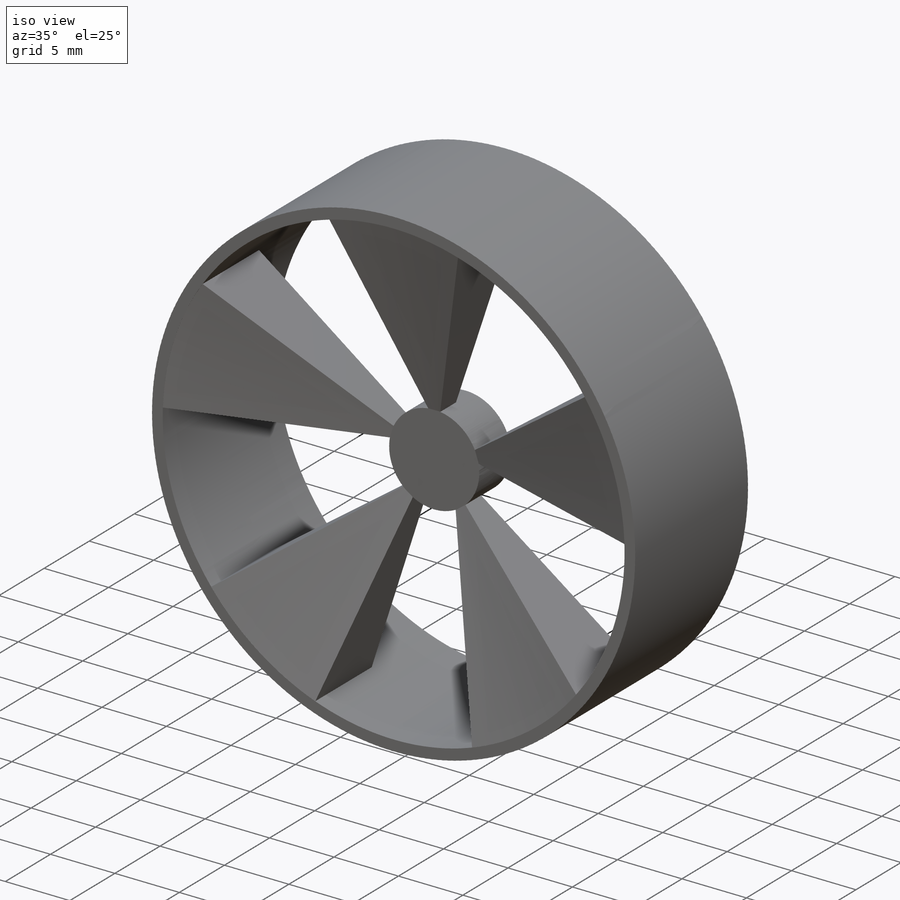
[diagram: iso view]
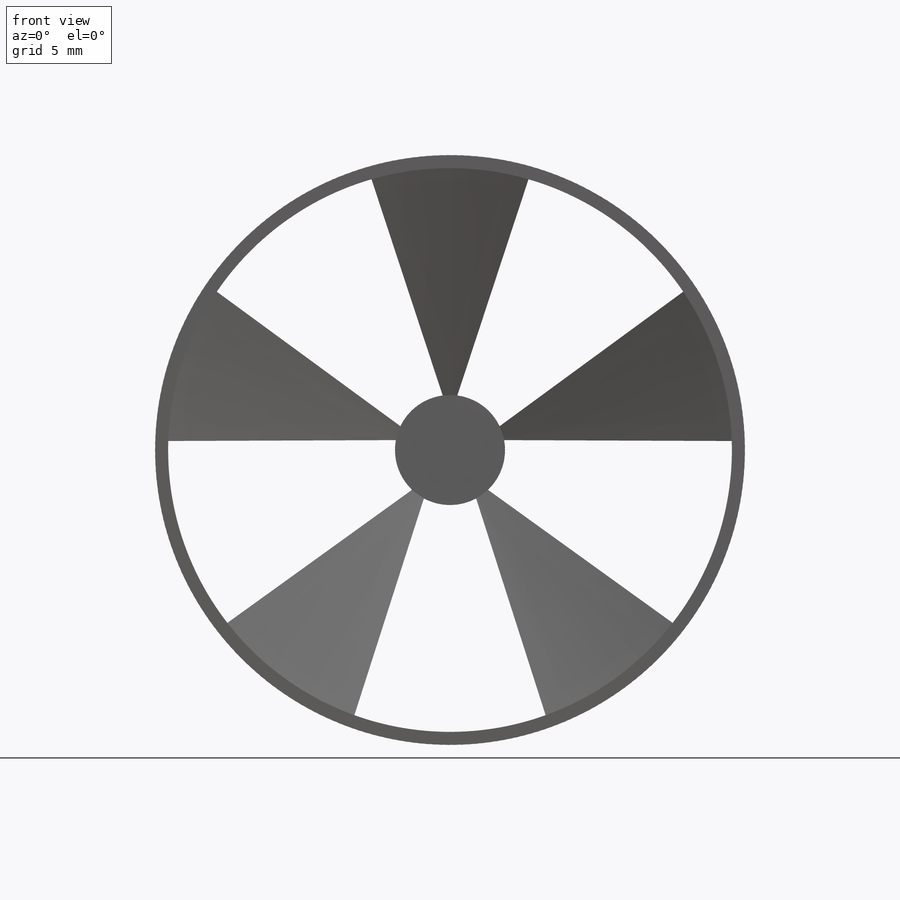
[diagram: front view]
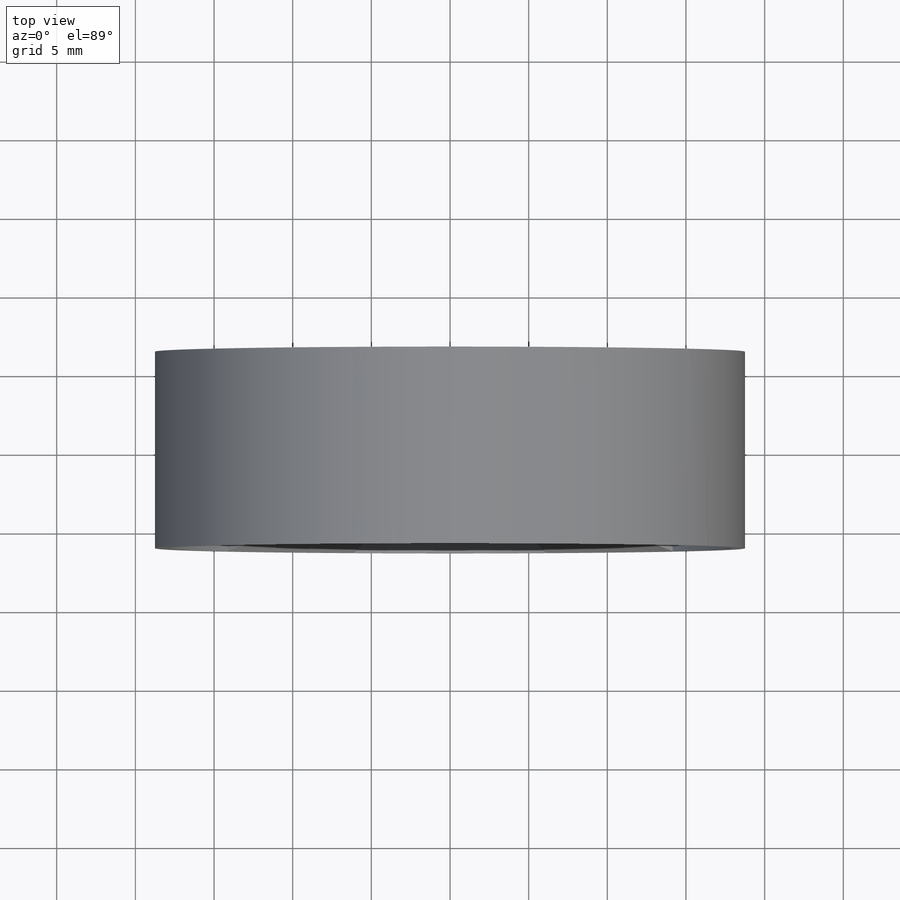
[diagram: top view]
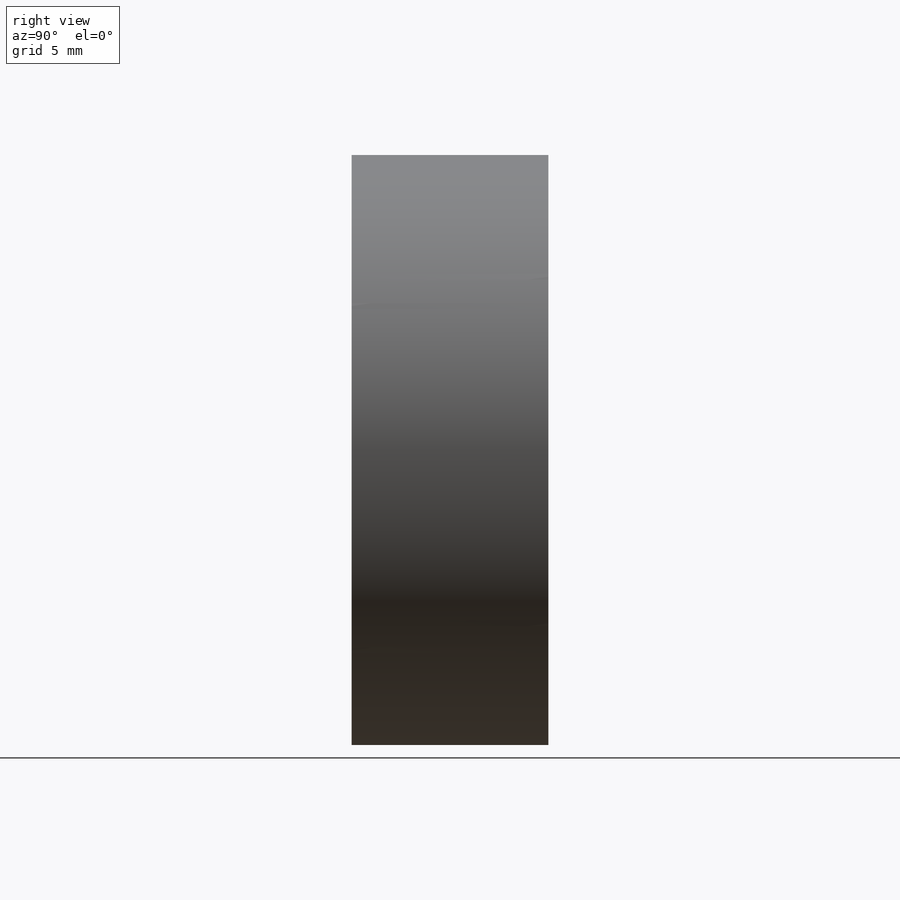
[diagram: right view]
SOLIDWORKS PART (.sldprt)
format: sldprt  version: not decoded by parser v0  size: 333,824 bytes
history: native  units: mm
features: sketch x8, revolve x2, cut_revolve x2, plane x2, material x1, pattern_circular x1, cut_extrude x1 (+13 scaffold rows collapsed)
feature tree (30):
  scaffold x13  (default folders/planes/origin — collapsed)
  material  "Material <not specified>"
  sketch  "Sketch1"  dims[D1=37.5mm D2=12.5mm]
  revolve  "Revolve1"  Angle=360deg
  sketch  "Sketch2"  dims[D1=2.0mm]
  cut_revolve  "Cut-Revolve1"  Angle=360deg
  sketch  "Sketch4"  dims[D1=7.0mm D2=3.5mm]
  revolve  "Revolve2"  Angle=360deg
  sketch  "Sketch6"  dims[D1=10.0mm]
  sketch  "Sketch7"  dims[D1=2.0mm]
  plane  "Plane1"
  sketch  "Sketch8"
  plane  "Plane2"
  sketch  "Sketch9"
  cut_revolve  "Split Line4"  [1 undecoded]
  pattern_circular  "CirPattern13"  Count=5 Angle=72deg
  sketch  "Sketch10"  dims[D1=1.0mm]
  cut_extrude  "Cut-Extrude1"  Depth=3mm
decode coverage: 11 of 14 modeling features carry decoded parameters
note: 1 parameter value undecoded
note: suppression state not decoded; provenance and decode notes live in map.json
